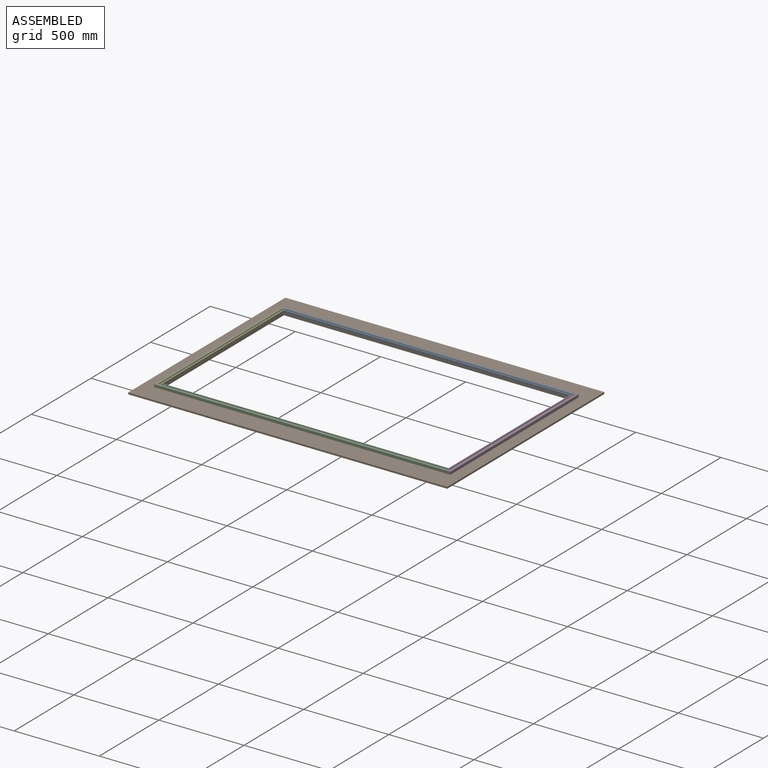
[diagram: assembled view]
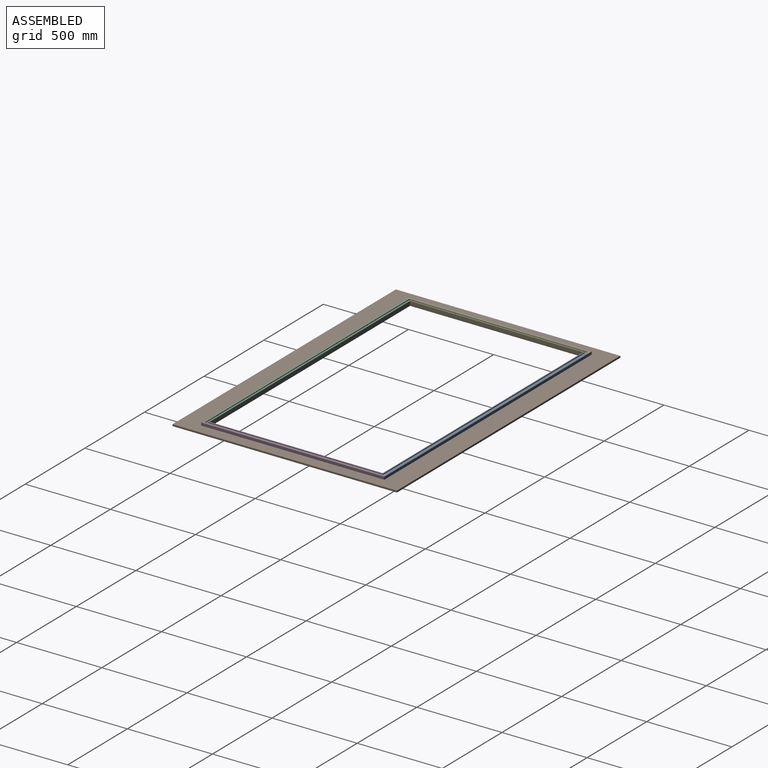
[diagram: assembled view, second angle]
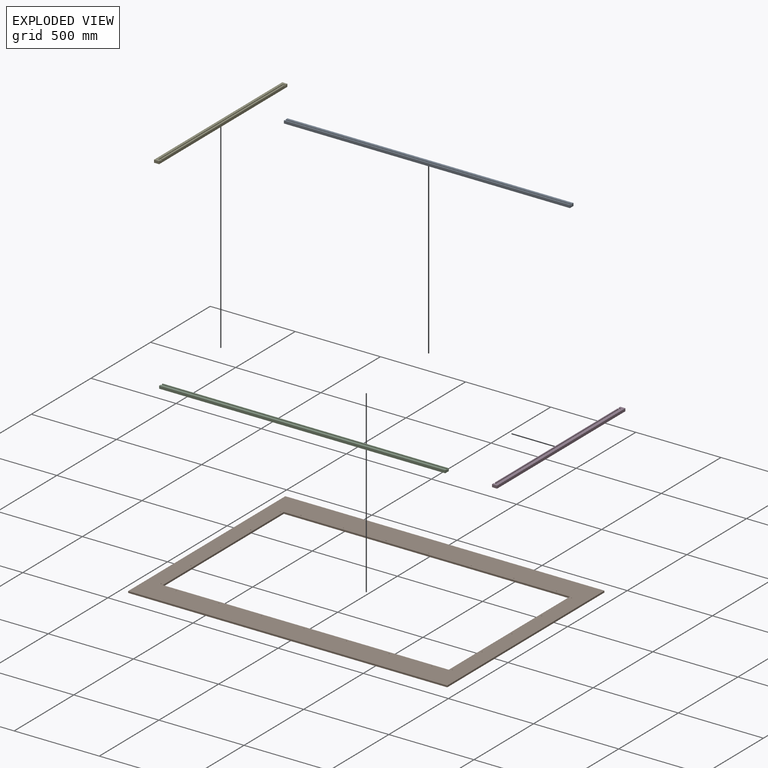
[diagram: exploded view]
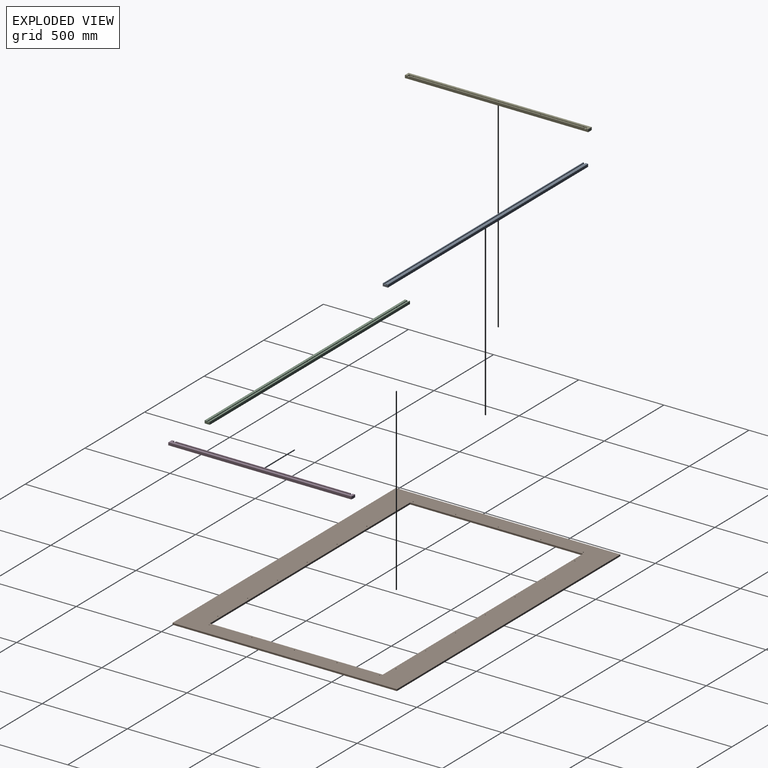
[diagram: exploded view, second angle]
ASSEMBLY  parts=5 mates=3
PART A: 24 faces, bbox 30x1680x16 mm
  f0: plane 1680x5mm, normal (-1,0,0), area 8311.9mm2, adj f1,f7,f8,f9,f10,f11,f12,f13
  f1: plane 1680x10mm, normal (0,0,1), area 16723.3mm2, adj f0,f2,f8,f9,f11,f13,f15,f17
  f2: plane 1680x5mm, normal (1,0,0), area 8400mm2, adj f1,f3,f8,f9
  f3: plane 1680x6mm, normal (0,0,1), area 10080mm2, adj f2,f4,f8,f9
  f4: plane 1680x16mm, normal (-1,0,0), area 26880mm2, adj f3,f5,f8,f9
  f5: plane 1680x30mm, normal (0,0,-1), area 50303mm2, adj f4,f6,f8,f9,f11,f13,f15,f17
  f6: plane 1680x16mm, normal (1,0,0), area 26880mm2, adj f5,f7,f8,f9
  f7: plane 1680x14mm, normal (0,0,1), area 23520mm2, adj f0,f6,f8,f9
  f8: plane 30x16mm, normal (0,-1,0), area 430mm2, adj f0,f1,f2,f3,f4,f5,f6,f7
  f9: plane 30x16mm, normal (0,1,0), area 430mm2, adj f0,f1,f2,f3,f4,f5,f6,f7
  f10: cone r=0mm half-angle=59deg, axis (0,0,-1), area 3.4mm2, adj f0,f11
  f11: cylinder r=2.1mm len=14mm, axis (0,0,-1), area 158.7mm2, adj f0,f1,f5,f10
  f12: cone r=0mm half-angle=59deg, axis (0,0,-1), area 3.4mm2, adj f0,f13
  f13: cylinder r=2.1mm len=14mm, axis (0,0,-1), area 158.7mm2, adj f0,f1,f5,f12
  f14: cone r=0mm half-angle=59deg, axis (0,0,-1), area 3.4mm2, adj f0,f15
  f15: cylinder r=2.1mm len=14mm, axis (0,0,-1), area 158.7mm2, adj f0,f1,f5,f14
  f16: cone r=0mm half-angle=59deg, axis (0,0,-1), area 3.4mm2, adj f0,f17
  f17: cylinder r=2.1mm len=14mm, axis (0,0,-1), area 158.7mm2, adj f0,f1,f5,f16
  f18: cone r=0mm half-angle=59deg, axis (0,0,-1), area 3.4mm2, adj f0,f19
  f19: cylinder r=2.1mm len=14mm, axis (0,0,-1), area 158.7mm2, adj f0,f1,f5,f18
  f20: cone r=0mm half-angle=59deg, axis (0,0,-1), area 3.4mm2, adj f0,f21
  f21: cylinder r=2.1mm len=14mm, axis (0,0,-1), area 158.7mm2, adj f0,f1,f5,f20
  f22: cone r=0mm half-angle=59deg, axis (0,0,-1), area 3.4mm2, adj f0,f23
  f23: cylinder r=2.1mm len=14mm, axis (0,0,-1), area 158.7mm2, adj f0,f1,f5,f22
PART B: 58 faces, bbox 1874x1318x10 mm
  f0: plane 1874x10mm, normal (0,1,0), area 18740mm2, adj f1,f7,f8,f9
  f1: plane 1318x10mm, normal (-1,0,0), area 13180mm2, adj f0,f2,f8,f9
  f2: plane 1874x10mm, normal (0,-1,0), area 18740mm2, adj f1,f7,f8,f9
  f3: plane 1016x10mm, normal (1,0,0), area 10160mm2, adj f4,f6,f8,f9
  f4: plane 1680x10mm, normal (0,-1,0), area 16800mm2, adj f3,f5,f8,f9
  f5: plane 1016x10mm, normal (-1,0,0), area 10160mm2, adj f4,f6,f8,f9
  f6: plane 1680x10mm, normal (0,1,0), area 16800mm2, adj f3,f5,f8,f9
  f7: plane 1318x10mm, normal (1,0,0), area 13180mm2, adj f0,f2,f8,f9
  f8: plane 1874x1318mm, normal (0,0,1), area 760687.5mm2, adj f0,f1,f2,f3,f4,f5,f6,f7
  f9: plane 1874x1318mm, normal (0,0,-1), area 762481.8mm2, adj f0,f1,f2,f3,f4,f5,f6,f7
  f10: cylinder r=2.75mm len=7.15mm, axis (0,0,1), area 123.5mm2, adj f9,f11
  f11: cone r=2.75mm half-angle=45deg, axis (0,0,1), area 105.7mm2, adj f8,f10
  f12: cylinder r=2.75mm len=7.15mm, axis (0,0,1), area 123.5mm2, adj f9,f13
  f13: cone r=2.75mm half-angle=45deg, axis (0,0,1), area 105.7mm2, adj f8,f12
  f14: cylinder r=2.75mm len=7.15mm, axis (0,0,1), area 123.5mm2, adj f9,f15
  f15: cone r=2.75mm half-angle=45deg, axis (0,0,1), area 105.7mm2, adj f8,f14
  f16: cylinder r=2.75mm len=7.15mm, axis (0,0,1), area 123.5mm2, adj f9,f17
  f17: cone r=2.75mm half-angle=45deg, axis (0,0,1), area 105.7mm2, adj f8,f16
  f18: cylinder r=2.75mm len=7.15mm, axis (0,0,1), area 123.5mm2, adj f9,f19
  f19: cone r=2.75mm half-angle=45deg, axis (0,0,1), area 105.7mm2, adj f8,f18
  f20: cylinder r=2.75mm len=7.15mm, axis (0,0,1), area 123.5mm2, adj f9,f21
  f21: cone r=2.75mm half-angle=45deg, axis (0,0,1), area 105.7mm2, adj f8,f20
  f22: cylinder r=2.75mm len=7.15mm, axis (0,0,1), area 123.5mm2, adj f9,f23
  f23: cone r=2.75mm half-angle=45deg, axis (0,0,1), area 105.7mm2, adj f8,f22
  f24: cylinder r=2.75mm len=7.15mm, axis (0,0,1), area 123.5mm2, adj f9,f25
  f25: cone r=2.75mm half-angle=45deg, axis (0,0,1), area 105.7mm2, adj f8,f24
  f26: cylinder r=2.75mm len=7.15mm, axis (0,0,1), area 123.5mm2, adj f9,f27
  f27: cone r=2.75mm half-angle=45deg, axis (0,0,1), area 105.7mm2, adj f8,f26
  f28: cylinder r=2.75mm len=7.15mm, axis (0,0,1), area 123.5mm2, adj f9,f29
  f29: cone r=2.75mm half-angle=45deg, axis (0,0,1), area 105.7mm2, adj f8,f28
  f30: cylinder r=2.75mm len=7.15mm, axis (0,0,1), area 123.5mm2, adj f9,f31
  f31: cone r=2.75mm half-angle=45deg, axis (0,0,1), area 105.7mm2, adj f8,f30
  f32: cylinder r=2.75mm len=7.15mm, axis (0,0,1), area 123.5mm2, adj f9,f33
  f33: cone r=2.75mm half-angle=45deg, axis (0,0,1), area 105.7mm2, adj f8,f32
  f34: cylinder r=2.75mm len=7.15mm, axis (0,0,1), area 123.5mm2, adj f9,f35
  f35: cone r=2.75mm half-angle=45deg, axis (0,0,1), area 105.7mm2, adj f8,f34
  f36: cylinder r=2.75mm len=7.15mm, axis (0,0,1), area 123.5mm2, adj f9,f37
  f37: cone r=2.75mm half-angle=45deg, axis (0,0,1), area 105.7mm2, adj f8,f36
  f38: cylinder r=2.75mm len=7.15mm, axis (0,0,1), area 123.5mm2, adj f9,f39
  f39: cone r=2.75mm half-angle=45deg, axis (0,0,1), area 105.7mm2, adj f8,f38
  f40: cylinder r=2.75mm len=7.15mm, axis (0,0,1), area 123.5mm2, adj f9,f41
  f41: cone r=2.75mm half-angle=45deg, axis (0,0,1), area 105.7mm2, adj f8,f40
  f42: cylinder r=2.75mm len=7.15mm, axis (0,0,1), area 123.5mm2, adj f9,f43
  f43: cone r=2.75mm half-angle=45deg, axis (0,0,1), area 105.7mm2, adj f8,f42
  f44: cylinder r=2.75mm len=7.15mm, axis (0,0,1), area 123.5mm2, adj f9,f45
  f45: cone r=2.75mm half-angle=45deg, axis (0,0,1), area 105.7mm2, adj f8,f44
  f46: cylinder r=2.75mm len=7.15mm, axis (0,0,1), area 123.5mm2, adj f9,f47
  f47: cone r=2.75mm half-angle=45deg, axis (0,0,1), area 105.7mm2, adj f8,f46
  f48: cylinder r=2.75mm len=7.15mm, axis (0,0,1), area 123.5mm2, adj f9,f49
  f49: cone r=2.75mm half-angle=45deg, axis (0,0,1), area 105.7mm2, adj f8,f48
  f50: cylinder r=2.75mm len=7.15mm, axis (0,0,1), area 123.5mm2, adj f9,f51
  f51: cone r=2.75mm half-angle=45deg, axis (0,0,1), area 105.7mm2, adj f8,f50
  f52: cylinder r=2.75mm len=7.15mm, axis (0,0,1), area 123.5mm2, adj f9,f53
  f53: cone r=2.75mm half-angle=45deg, axis (0,0,1), area 105.7mm2, adj f8,f52
  f54: cylinder r=2.75mm len=7.15mm, axis (0,0,1), area 123.5mm2, adj f9,f55
  f55: cone r=2.75mm half-angle=45deg, axis (0,0,1), area 105.7mm2, adj f8,f54
  f56: cylinder r=2.75mm len=7.15mm, axis (0,0,1), area 123.5mm2, adj f9,f57
  f57: cone r=2.75mm half-angle=45deg, axis (0,0,1), area 105.7mm2, adj f8,f56
PART C: same geometry as A
PART D: 26 faces, bbox 30x1076x16 mm
  f0: plane 1038x5mm, normal (-1,0,0), area 5127.1mm2, adj f2,f13,f14,f15,f16,f17,f18,f19
  f1: plane 1028x6mm, normal (0,0,1), area 6168mm2, adj f3,f9,f10,f11
  f2: plane 1076x30mm, normal (0,0,1), area 15522.7mm2, adj f0,f3,f5,f6,f7,f8,f12,f14
  f3: plane 1076x16mm, normal (-1,0,0), area 17116mm2, adj f1,f2,f4,f6,f7,f8,f9,f11
  f4: plane 1076x30mm, normal (0,0,-1), area 32210.7mm2, adj f3,f5,f6,f7,f17,f19,f21,f23
  f5: plane 1076x16mm, normal (1,0,0), area 17216mm2, adj f2,f4,f6,f7
  f6: plane 30x16mm, normal (0,-1,0), area 480mm2, adj f2,f3,f4,f5
  f7: plane 30x16mm, normal (0,1,0), area 480mm2, adj f2,f3,f4,f5
  f8: plane 11x5mm, normal (0,-1,0), area 55mm2, adj f2,f3,f13,f14
  f9: plane 6x5mm, normal (0,1,0), area 30mm2, adj f1,f3,f10,f13
  f10: plane 1028x5mm, normal (1,0,0), area 5140mm2, adj f1,f9,f11,f13
  f11: plane 6x5mm, normal (0,-1,0), area 30mm2, adj f1,f3,f10,f13
  f12: plane 11x5mm, normal (0,1,0), area 55mm2, adj f2,f3,f13,f15
  f13: plane 1048x16mm, normal (0,0,1), area 10534.5mm2, adj f0,f3,f8,f9,f10,f11,f12,f14
  f14: cylinder r=5mm len=5mm, axis (0,0,-1), area 39.3mm2, adj f0,f2,f8,f13
  f15: cylinder r=5mm len=5mm, axis (0,0,1), area 39.3mm2, adj f0,f2,f12,f13
  f16: cone r=0mm half-angle=59deg, axis (0,0,-1), area 3.4mm2, adj f0,f17
  f17: cylinder r=2.1mm len=14mm, axis (0,0,-1), area 158.7mm2, adj f0,f4,f13,f16
  f18: cone r=0mm half-angle=59deg, axis (0,0,-1), area 3.4mm2, adj f0,f19
  f19: cylinder r=2.1mm len=14mm, axis (0,0,-1), area 158.7mm2, adj f0,f4,f13,f18
  f20: cone r=0mm half-angle=59deg, axis (0,0,-1), area 3.4mm2, adj f0,f21
  f21: cylinder r=2.1mm len=14mm, axis (0,0,-1), area 158.7mm2, adj f0,f4,f13,f20
  f22: cone r=0mm half-angle=59deg, axis (0,0,-1), area 3.4mm2, adj f0,f23
  f23: cylinder r=2.1mm len=14mm, axis (0,0,-1), area 158.7mm2, adj f0,f4,f13,f22
  f24: cone r=0mm half-angle=59deg, axis (0,0,-1), area 3.4mm2, adj f0,f25
  f25: cylinder r=2.1mm len=14mm, axis (0,0,-1), area 158.7mm2, adj f0,f4,f13,f24
PART E: same geometry as D
PLACE A rot(axis=(0,0,1),90deg) t=(-1312.04,-777.41,8.86)mm
PLACE B rot(axis=(1,0,0),180deg) t=(-472.04,-1300.41,0.86)mm
PLACE C rot(axis=(0,0,-1),90deg) t=(367.96,-1823.41,8.86)mm
PLACE D t=(382.96,-762.41,8.86)mm
PLACE E rot(axis=(0,0,-1),180deg) t=(-1327.04,-1838.41,8.86)mm
MATE fastened E.f16 <-> B.f10  axis (0,0,-1) through (-1327.04,-1800.41,0.86)mm
MATE fastened C.f10 <-> B.f44  axis (0,0,-1) through (277.96,-1823.41,0.86)mm
MATE fastened A.f22 <-> B.f30  axis (0,0,-1) through (277.96,-777.41,0.86)mm
